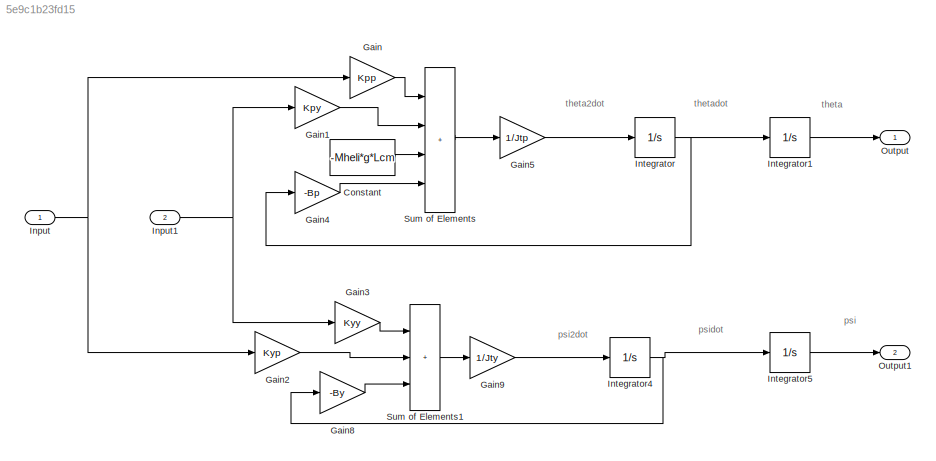
MODEL slx_5e9c1b23fd15
KIND model
CONFIG AbsTol = auto
CONFIG EnableMultiTasking = off
CONFIG FixedStep = auto
CONFIG MaxStep = auto
CONFIG MinStep = auto
CONFIG RelTol = 1e-3
CONFIG SampleTimeConstraint = Unconstrained
CONFIG SolverName = VariableStepAuto
CONFIG StartTime = 0.0
CONFIG StopTime = 10.0
BLOCK [Constant] Constant
  Value = -Mheli*g*Lcm
BLOCK [Gain] Gain
  Gain = Kpp
BLOCK [Gain] Gain1
  Gain = Kpy
BLOCK [Gain] Gain2
  Gain = Kyp
BLOCK [Gain] Gain3
  Gain = Kyy
BLOCK [Gain] Gain4
  Gain = -Bp
BLOCK [Gain] Gain5
  Gain = 1/Jtp
BLOCK [Gain] Gain8
  Gain = -By
BLOCK [Gain] Gain9
  Gain = 1/Jty
BLOCK [Inport] Input
BLOCK [Inport] Input1
  Port = 2
BLOCK [Integrator] Integrator
  Ports = [1, 1]
BLOCK [Integrator] Integrator1
  Ports = [1, 1]
BLOCK [Integrator] Integrator4
  Ports = [1, 1]
BLOCK [Integrator] Integrator5
  Ports = [1, 1]
BLOCK [Outport] Output
BLOCK [Outport] Output1
  Port = 2
BLOCK [Sum] Sum of Elements
  IconShape = rectangular
  Inputs = 4
  Ports = [4, 1]
BLOCK [Sum] Sum of Elements1
  IconShape = rectangular
  Inputs = 3
  Ports = [3, 1]
ANNOTATION (root): psi
ANNOTATION (root): psi2dot
ANNOTATION (root): psidot
ANNOTATION (root): theta
ANNOTATION (root): theta2dot
ANNOTATION (root): thetadot
LINE Constant:1 -> Sum of Elements:3
LINE Gain1:1 -> Sum of Elements:2
LINE Gain2:1 -> Sum of Elements1:2
LINE Gain3:1 -> Sum of Elements1:1
LINE Gain4:1 -> Sum of Elements:4
LINE Gain5:1 -> Integrator:1
LINE Gain8:1 -> Sum of Elements1:3
LINE Gain9:1 -> Integrator4:1
LINE Gain:1 -> Sum of Elements:1
NET Input1:1 -> Gain1:1, Gain3:1
NET Input:1 -> Gain2:1, Gain:1
LINE Integrator1:1 -> Output:1
NET Integrator4:1 -> Gain8:1, Integrator5:1
LINE Integrator5:1 -> Output1:1
NET Integrator:1 -> Gain4:1, Integrator1:1
LINE Sum of Elements1:1 -> Gain9:1
LINE Sum of Elements:1 -> Gain5:1
note: NET lines group one-source signal fan-out (src -> all destinations, sorted); 1:1 wires keep LINE
